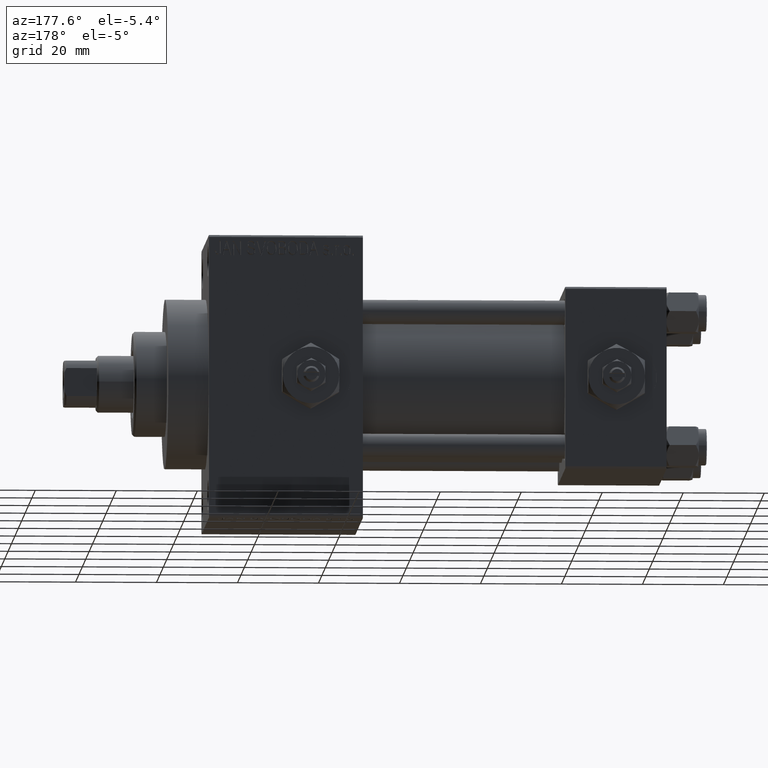
[diagram: clean part render]
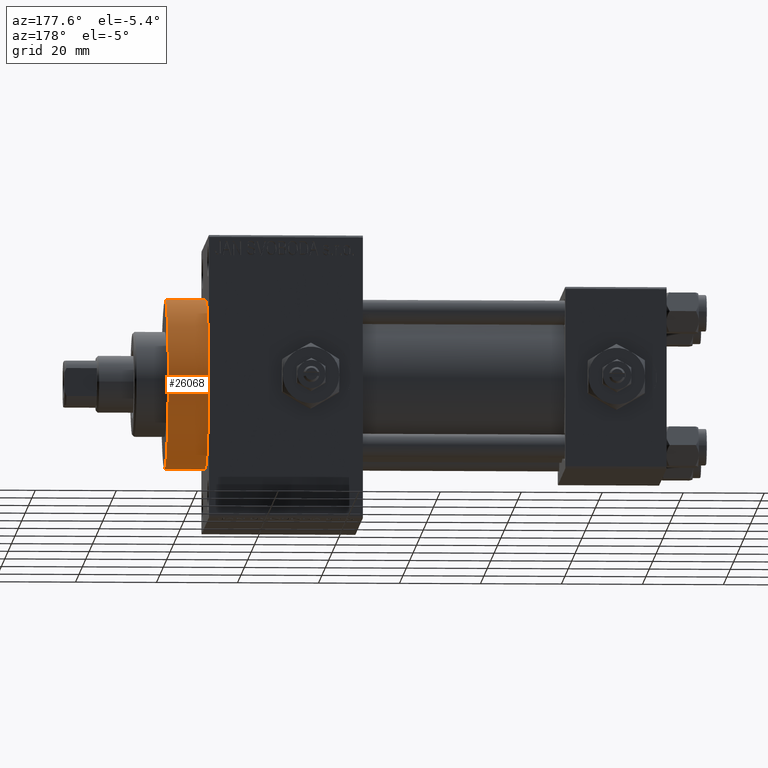
[diagram: same view with one face highlighted and labeled with its STEP entity id]
A machine part, auxiliary view. The second image highlights one B-rep face of the part: STEP entity #26068.
In plain terms, the highlighted cylindrical surface (partial cylindrical patch) has radius 21 mm, axis along (-1, -0, -0).
Its self-contained STEP definition (entity closure, byte-faithful):
#343 = VECTOR ( 'NONE', #46894, 1000.000000000000000 ) ;
#1238 = EDGE_CURVE ( 'NONE', #34323, #19939, #35928, .T. ) ;
#1417 = DIRECTION ( 'NONE',  ( 0.000000000000000000, 0.000000000000000000, -1.000000000000000000 ) ) ;
#3197 = EDGE_CURVE ( 'NONE', #34323, #16840, #4598, .T. ) ;
#4598 = LINE ( 'NONE', #19732, #7466 ) ;
#4652 = EDGE_CURVE ( 'NONE', #19939, #29700, #39443, .T. ) ;
#4973 = ORIENTED_EDGE ( 'NONE', *, *, #3197, .T. ) ;
#5130 = AXIS2_PLACEMENT_3D ( 'NONE', #7968, #23114, #15896 ) ;
#6634 = CARTESIAN_POINT ( 'NONE',  ( 123.0000000000000142, 2.571758278209441661E-15, -21.00000000000000000 ) ) ;
#7250 = CARTESIAN_POINT ( 'NONE',  ( 113.0000000000000142, 2.571758278209441661E-15, -21.00000000000000000 ) ) ;
#7466 = VECTOR ( 'NONE', #24206, 1000.000000000000000 ) ;
#7968 = CARTESIAN_POINT ( 'NONE',  ( 123.0000000000000142, 0.000000000000000000, 0.000000000000000000 ) ) ;
#11924 = CARTESIAN_POINT ( 'NONE',  ( 113.0000000000000142, 0.000000000000000000, 0.000000000000000000 ) ) ;
#13140 = ORIENTED_EDGE ( 'NONE', *, *, #1238, .F. ) ;
#15896 = DIRECTION ( 'NONE',  ( 0.000000000000000000, 0.000000000000000000, 1.000000000000000000 ) ) ;
#16840 = VERTEX_POINT ( 'NONE', #7250 ) ;
#19732 = CARTESIAN_POINT ( 'NONE',  ( 123.0000000000000142, 2.571758278209441661E-15, -21.00000000000000000 ) ) ;
#19789 = DIRECTION ( 'NONE',  ( 1.000000000000000000, 0.000000000000000000, 0.000000000000000000 ) ) ;
#19939 = VERTEX_POINT ( 'NONE', #39152 ) ;
#20332 = ORIENTED_EDGE ( 'NONE', *, *, #44569, .T. ) ;
#20556 = CARTESIAN_POINT ( 'NONE',  ( 123.0000000000000142, 0.000000000000000000, 21.00000000000000000 ) ) ;
#21799 = ORIENTED_EDGE ( 'NONE', *, *, #4652, .F. ) ;
#22826 = CARTESIAN_POINT ( 'NONE',  ( 113.0000000000000142, 0.000000000000000000, 21.00000000000000000 ) ) ;
#23114 = DIRECTION ( 'NONE',  ( -1.000000000000000000, -0.000000000000000000, -0.000000000000000000 ) ) ;
#24086 = CYLINDRICAL_SURFACE ( 'NONE', #5130, 21.00000000000000000 ) ;
#24206 = DIRECTION ( 'NONE',  ( -1.000000000000000000, -0.000000000000000000, -0.000000000000000000 ) ) ;
#25184 = CARTESIAN_POINT ( 'NONE',  ( 123.0000000000000142, 0.000000000000000000, 0.000000000000000000 ) ) ;
#26068 = ADVANCED_FACE ( 'NONE', ( #46188 ), #24086, .T. ) ;
#29435 = AXIS2_PLACEMENT_3D ( 'NONE', #11924, #37510, #37762 ) ;
#29700 = VERTEX_POINT ( 'NONE', #22826 ) ;
#31166 = AXIS2_PLACEMENT_3D ( 'NONE', #25184, #19789, #1417 ) ;
#32618 = CIRCLE ( 'NONE', #29435, 21.00000000000000000 ) ;
#34323 = VERTEX_POINT ( 'NONE', #6634 ) ;
#35928 = CIRCLE ( 'NONE', #31166, 21.00000000000000000 ) ;
#37510 = DIRECTION ( 'NONE',  ( 1.000000000000000000, 0.000000000000000000, 0.000000000000000000 ) ) ;
#37762 = DIRECTION ( 'NONE',  ( 0.000000000000000000, 0.000000000000000000, -1.000000000000000000 ) ) ;
#39152 = CARTESIAN_POINT ( 'NONE',  ( 123.0000000000000142, 0.000000000000000000, 21.00000000000000000 ) ) ;
#39443 = LINE ( 'NONE', #20556, #343 ) ;
#40307 = EDGE_LOOP ( 'NONE', ( #13140, #4973, #20332, #21799 ) ) ;
#44569 = EDGE_CURVE ( 'NONE', #16840, #29700, #32618, .T. ) ;
#46188 = FACE_OUTER_BOUND ( 'NONE', #40307, .T. ) ;
#46894 = DIRECTION ( 'NONE',  ( -1.000000000000000000, -0.000000000000000000, -0.000000000000000000 ) ) ;